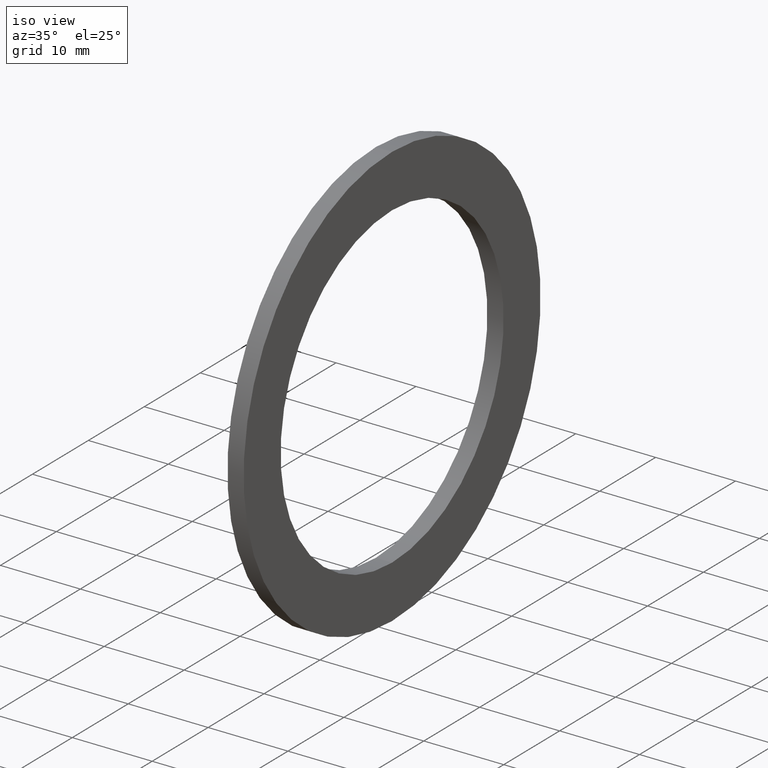
[diagram: clean part render]
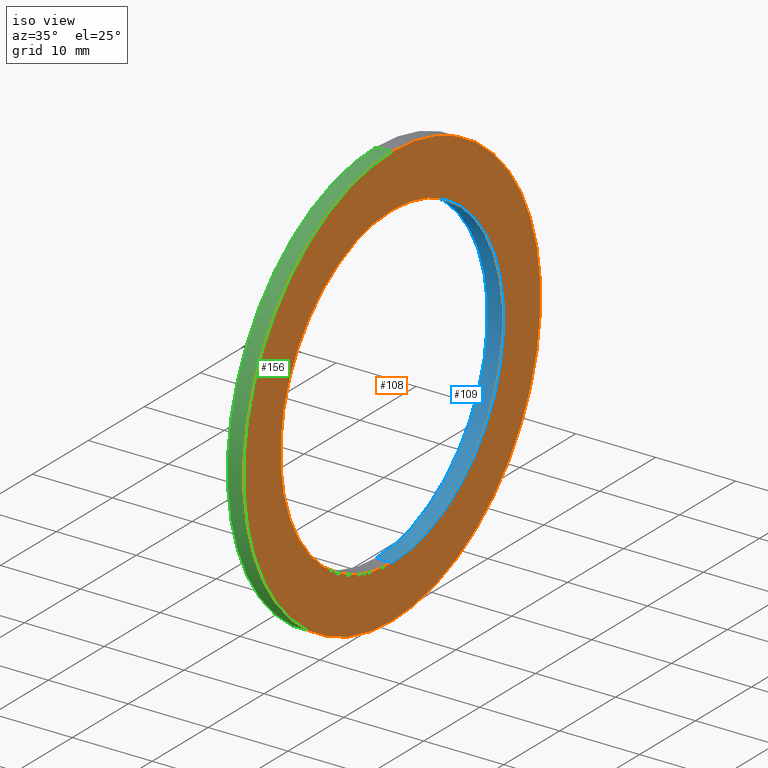
[diagram: same view with three faces highlighted in distinct colors, each labeled with its STEP entity id]
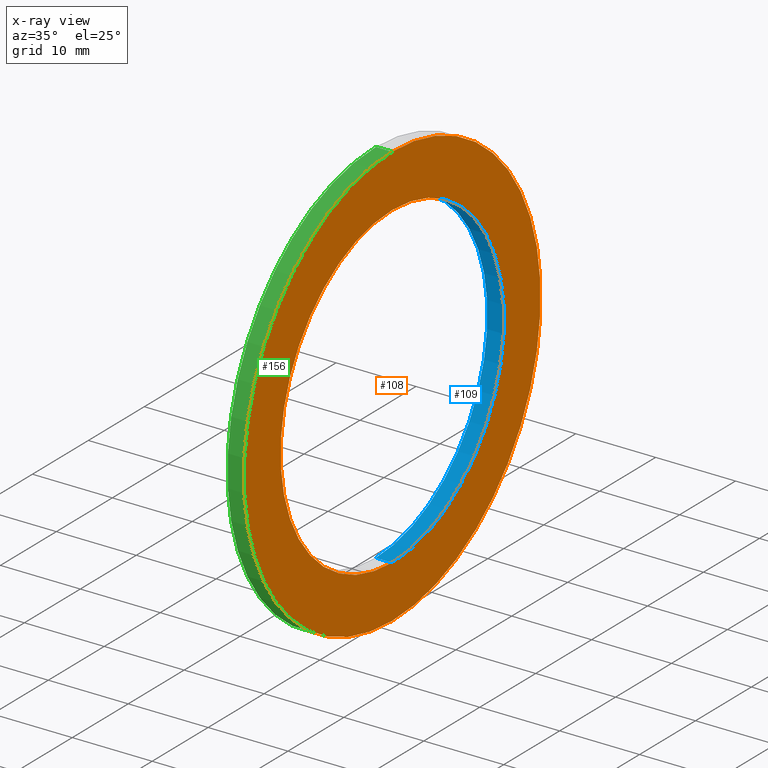
[diagram: x-ray of the same camera — body ghosted, the three highlighted faces saturated]
A machine part, iso view with three faces highlighted in distinct colors.
The next image is the same camera in x-ray (body ghosted, the three faces saturated) — at least one of them is partly hidden behind the body in this view.
Their STEP definitions:

[orange] entity #108 — the highlighted planar face has unit normal (1, 0, 0).
#1 = CARTESIAN_POINT ( 'NONE',  ( 0.07999999999999996000, 0.0000000000000000000, 0.0000000000000000000 ) ) ;
#2 = DIRECTION ( 'NONE',  ( -1.000000000000000000, 0.0000000000000000000, 0.0000000000000000000 ) ) ;
#3 = DIRECTION ( 'NONE',  ( 0.0000000000000000000, 0.0000000000000000000, 1.000000000000000000 ) ) ;
#5 = DIRECTION ( 'NONE',  ( 0.0000000000000000000, 0.0000000000000000000, -1.000000000000000000 ) ) ;
#6 = DIRECTION ( 'NONE',  ( 1.000000000000000000, 0.0000000000000000000, 0.0000000000000000000 ) ) ;
#7 = CARTESIAN_POINT ( 'NONE',  ( 0.08000000000000002900, -0.7850000000000001400, 0.0000000000000000000 ) ) ;
#8 = AXIS2_PLACEMENT_3D ( 'NONE', #7, #6, #5 ) ;
#10 = PLANE ( 'NONE',  #8 ) ;
#11 = FACE_OUTER_BOUND ( 'NONE', #83, .T. ) ;
#12 = DIRECTION ( 'NONE',  ( 0.0000000000000000000, 0.0000000000000000000, 1.000000000000000000 ) ) ;
#13 = DIRECTION ( 'NONE',  ( -1.000000000000000000, 0.0000000000000000000, 0.0000000000000000000 ) ) ;
#14 = CARTESIAN_POINT ( 'NONE',  ( 0.07999999999999996000, 0.0000000000000000000, 0.0000000000000000000 ) ) ;
#15 = AXIS2_PLACEMENT_3D ( 'NONE', #14, #13, #12 ) ;
#16 = CIRCLE ( 'NONE', #15, 0.7850000000000001400 ) ;
#17 = FACE_BOUND ( 'NONE', #84, .T. ) ;
#49 = CARTESIAN_POINT ( 'NONE',  ( 0.07999999999999996000, 0.0000000000000000000, 0.7850000000000001400 ) ) ;
#50 = DIRECTION ( 'NONE',  ( 0.0000000000000000000, 0.0000000000000000000, 1.000000000000000000 ) ) ;
#51 = DIRECTION ( 'NONE',  ( -1.000000000000000000, 0.0000000000000000000, 0.0000000000000000000 ) ) ;
#52 = CARTESIAN_POINT ( 'NONE',  ( 0.07999999999999996000, 0.0000000000000000000, 0.0000000000000000000 ) ) ;
#53 = AXIS2_PLACEMENT_3D ( 'NONE', #52, #51, #50 ) ;
#54 = CIRCLE ( 'NONE', #53, 0.7850000000000001400 ) ;
#59 = CARTESIAN_POINT ( 'NONE',  ( 0.07999999999999996000, 9.613477373306724800E-017, -0.7850000000000001400 ) ) ;
#82 = EDGE_CURVE ( 'NONE', #119, #117, #16, .T. ) ;
#83 = EDGE_LOOP ( 'NONE', ( #91, #88 ) ) ;
#84 = EDGE_LOOP ( 'NONE', ( #112, #90 ) ) ;
#88 = ORIENTED_EDGE ( 'NONE', *, *, #155, .F. ) ;
#90 = ORIENTED_EDGE ( 'NONE', *, *, #118, .T. ) ;
#91 = ORIENTED_EDGE ( 'NONE', *, *, #142, .F. ) ;
#93 = DIRECTION ( 'NONE',  ( 0.0000000000000000000, 0.0000000000000000000, 1.000000000000000000 ) ) ;
#94 = DIRECTION ( 'NONE',  ( -1.000000000000000000, 0.0000000000000000000, 0.0000000000000000000 ) ) ;
#95 = CARTESIAN_POINT ( 'NONE',  ( 0.07999999999999996000, 0.0000000000000000000, 0.0000000000000000000 ) ) ;
#96 = AXIS2_PLACEMENT_3D ( 'NONE', #95, #94, #93 ) ;
#97 = CIRCLE ( 'NONE', #96, 1.044999999999999900 ) ;
#108 = ADVANCED_FACE ( 'NONE', ( #17, #11 ), #10, .T. ) ;
#112 = ORIENTED_EDGE ( 'NONE', *, *, #82, .T. ) ;
#117 = VERTEX_POINT ( 'NONE', #59 ) ;
#118 = EDGE_CURVE ( 'NONE', #117, #119, #54, .T. ) ;
#119 = VERTEX_POINT ( 'NONE', #49 ) ;
#125 = AXIS2_PLACEMENT_3D ( 'NONE', #1, #2, #3 ) ;
#126 = CIRCLE ( 'NONE', #125, 1.044999999999999900 ) ;
#128 = CARTESIAN_POINT ( 'NONE',  ( 0.07999999999999996000, 1.279755905108984100E-016, -1.044999999999999900 ) ) ;
#129 = CARTESIAN_POINT ( 'NONE',  ( 0.07999999999999996000, 0.0000000000000000000, 1.044999999999999900 ) ) ;
#142 = EDGE_CURVE ( 'NONE', #147, #148, #97, .T. ) ;
#147 = VERTEX_POINT ( 'NONE', #129 ) ;
#148 = VERTEX_POINT ( 'NONE', #128 ) ;
#155 = EDGE_CURVE ( 'NONE', #148, #147, #126, .T. ) ;

[blue] entity #109 — the highlighted cylindrical surface (partial cylindrical patch) has radius 19.939 mm, axis along (-1, 0, 0).
#4 = CARTESIAN_POINT ( 'NONE',  ( -1.721125226614714300, 0.0000000000000000000, 0.0000000000000000000 ) ) ;
#9 = FACE_OUTER_BOUND ( 'NONE', #89, .T. ) ;
#12 = DIRECTION ( 'NONE',  ( 0.0000000000000000000, 0.0000000000000000000, 1.000000000000000000 ) ) ;
#13 = DIRECTION ( 'NONE',  ( -1.000000000000000000, 0.0000000000000000000, 0.0000000000000000000 ) ) ;
#14 = CARTESIAN_POINT ( 'NONE',  ( 0.07999999999999996000, 0.0000000000000000000, 0.0000000000000000000 ) ) ;
#15 = AXIS2_PLACEMENT_3D ( 'NONE', #14, #13, #12 ) ;
#16 = CIRCLE ( 'NONE', #15, 0.7850000000000001400 ) ;
#26 = EDGE_CURVE ( 'NONE', #119, #149, #41, .T. ) ;
#38 = DIRECTION ( 'NONE',  ( -1.000000000000000000, 0.0000000000000000000, 0.0000000000000000000 ) ) ;
#39 = VECTOR ( 'NONE', #38, 39.37007874015748100 ) ;
#40 = CARTESIAN_POINT ( 'NONE',  ( -1.721125226614714300, 0.0000000000000000000, 0.7850000000000001400 ) ) ;
#41 = LINE ( 'NONE', #40, #39 ) ;
#46 = VECTOR ( 'NONE', #72, 39.37007874015748100 ) ;
#47 = CARTESIAN_POINT ( 'NONE',  ( -1.721125226614714300, 9.613477373306724800E-017, -0.7850000000000001400 ) ) ;
#48 = LINE ( 'NONE', #47, #46 ) ;
#49 = CARTESIAN_POINT ( 'NONE',  ( 0.07999999999999996000, 0.0000000000000000000, 0.7850000000000001400 ) ) ;
#59 = CARTESIAN_POINT ( 'NONE',  ( 0.07999999999999996000, 9.613477373306724800E-017, -0.7850000000000001400 ) ) ;
#61 = DIRECTION ( 'NONE',  ( 0.0000000000000000000, 0.0000000000000000000, 1.000000000000000000 ) ) ;
#62 = DIRECTION ( 'NONE',  ( -1.000000000000000000, 0.0000000000000000000, 0.0000000000000000000 ) ) ;
#63 = AXIS2_PLACEMENT_3D ( 'NONE', #4, #62, #61 ) ;
#64 = CYLINDRICAL_SURFACE ( 'NONE', #63, 0.7850000000000001400 ) ;
#71 = CARTESIAN_POINT ( 'NONE',  ( 0.0000000000000000000, 9.613477373306724800E-017, -0.7850000000000001400 ) ) ;
#72 = DIRECTION ( 'NONE',  ( -1.000000000000000000, 0.0000000000000000000, 0.0000000000000000000 ) ) ;
#82 = EDGE_CURVE ( 'NONE', #119, #117, #16, .T. ) ;
#85 = ORIENTED_EDGE ( 'NONE', *, *, #82, .F. ) ;
#86 = ORIENTED_EDGE ( 'NONE', *, *, #26, .T. ) ;
#87 = ORIENTED_EDGE ( 'NONE', *, *, #138, .T. ) ;
#89 = EDGE_LOOP ( 'NONE', ( #110, #85, #86, #87 ) ) ;
#103 = DIRECTION ( 'NONE',  ( 0.0000000000000000000, 0.0000000000000000000, 1.000000000000000000 ) ) ;
#104 = DIRECTION ( 'NONE',  ( -1.000000000000000000, 0.0000000000000000000, 0.0000000000000000000 ) ) ;
#105 = CARTESIAN_POINT ( 'NONE',  ( 0.0000000000000000000, 0.0000000000000000000, 0.0000000000000000000 ) ) ;
#106 = AXIS2_PLACEMENT_3D ( 'NONE', #105, #104, #103 ) ;
#107 = CIRCLE ( 'NONE', #106, 0.7850000000000001400 ) ;
#109 = ADVANCED_FACE ( 'NONE', ( #9 ), #64, .F. ) ;
#110 = ORIENTED_EDGE ( 'NONE', *, *, #121, .F. ) ;
#117 = VERTEX_POINT ( 'NONE', #59 ) ;
#119 = VERTEX_POINT ( 'NONE', #49 ) ;
#121 = EDGE_CURVE ( 'NONE', #117, #122, #48, .T. ) ;
#122 = VERTEX_POINT ( 'NONE', #71 ) ;
#127 = CARTESIAN_POINT ( 'NONE',  ( 0.0000000000000000000, 0.0000000000000000000, 0.7850000000000001400 ) ) ;
#138 = EDGE_CURVE ( 'NONE', #149, #122, #107, .T. ) ;
#149 = VERTEX_POINT ( 'NONE', #127 ) ;

[green] entity #156 — the highlighted cylindrical surface (partial cylindrical patch) has radius 26.543 mm, axis along (-1, 0, 0).
#1 = CARTESIAN_POINT ( 'NONE',  ( 0.07999999999999996000, 0.0000000000000000000, 0.0000000000000000000 ) ) ;
#2 = DIRECTION ( 'NONE',  ( -1.000000000000000000, 0.0000000000000000000, 0.0000000000000000000 ) ) ;
#3 = DIRECTION ( 'NONE',  ( 0.0000000000000000000, 0.0000000000000000000, 1.000000000000000000 ) ) ;
#18 = CARTESIAN_POINT ( 'NONE',  ( 0.0000000000000000000, 0.0000000000000000000, 1.044999999999999900 ) ) ;
#29 = DIRECTION ( 'NONE',  ( -1.000000000000000000, 0.0000000000000000000, 0.0000000000000000000 ) ) ;
#30 = VECTOR ( 'NONE', #29, 39.37007874015748100 ) ;
#31 = CARTESIAN_POINT ( 'NONE',  ( -1.721125226614714300, 0.0000000000000000000, 1.044999999999999900 ) ) ;
#37 = LINE ( 'NONE', #31, #30 ) ;
#76 = EDGE_CURVE ( 'NONE', #147, #78, #37, .T. ) ;
#78 = VERTEX_POINT ( 'NONE', #18 ) ;
#92 = CARTESIAN_POINT ( 'NONE',  ( 0.0000000000000000000, 1.279755905108984100E-016, -1.044999999999999900 ) ) ;
#98 = DIRECTION ( 'NONE',  ( 0.0000000000000000000, 0.0000000000000000000, 1.000000000000000000 ) ) ;
#99 = DIRECTION ( 'NONE',  ( -1.000000000000000000, 0.0000000000000000000, 0.0000000000000000000 ) ) ;
#100 = CARTESIAN_POINT ( 'NONE',  ( 0.0000000000000000000, 0.0000000000000000000, 0.0000000000000000000 ) ) ;
#101 = AXIS2_PLACEMENT_3D ( 'NONE', #100, #99, #98 ) ;
#102 = CIRCLE ( 'NONE', #101, 1.044999999999999900 ) ;
#125 = AXIS2_PLACEMENT_3D ( 'NONE', #1, #2, #3 ) ;
#126 = CIRCLE ( 'NONE', #125, 1.044999999999999900 ) ;
#128 = CARTESIAN_POINT ( 'NONE',  ( 0.07999999999999996000, 1.279755905108984100E-016, -1.044999999999999900 ) ) ;
#129 = CARTESIAN_POINT ( 'NONE',  ( 0.07999999999999996000, 0.0000000000000000000, 1.044999999999999900 ) ) ;
#130 = DIRECTION ( 'NONE',  ( -1.000000000000000000, 0.0000000000000000000, 0.0000000000000000000 ) ) ;
#131 = VECTOR ( 'NONE', #130, 39.37007874015748100 ) ;
#132 = CARTESIAN_POINT ( 'NONE',  ( -1.721125226614714300, 1.279755905108984100E-016, -1.044999999999999900 ) ) ;
#133 = LINE ( 'NONE', #132, #131 ) ;
#135 = ORIENTED_EDGE ( 'NONE', *, *, #146, .F. ) ;
#139 = EDGE_CURVE ( 'NONE', #144, #78, #102, .T. ) ;
#144 = VERTEX_POINT ( 'NONE', #92 ) ;
#146 = EDGE_CURVE ( 'NONE', #148, #144, #133, .T. ) ;
#147 = VERTEX_POINT ( 'NONE', #129 ) ;
#148 = VERTEX_POINT ( 'NONE', #128 ) ;
#151 = ORIENTED_EDGE ( 'NONE', *, *, #139, .F. ) ;
#152 = ORIENTED_EDGE ( 'NONE', *, *, #76, .T. ) ;
#153 = EDGE_LOOP ( 'NONE', ( #135, #154, #152, #151 ) ) ;
#154 = ORIENTED_EDGE ( 'NONE', *, *, #155, .T. ) ;
#155 = EDGE_CURVE ( 'NONE', #148, #147, #126, .T. ) ;
#156 = ADVANCED_FACE ( 'NONE', ( #171 ), #163, .T. ) ;
#157 = AXIS2_PLACEMENT_3D ( 'NONE', #158, #170, #175 ) ;
#158 = CARTESIAN_POINT ( 'NONE',  ( -1.721125226614714300, 0.0000000000000000000, 0.0000000000000000000 ) ) ;
#163 = CYLINDRICAL_SURFACE ( 'NONE', #157, 1.044999999999999900 ) ;
#170 = DIRECTION ( 'NONE',  ( -1.000000000000000000, 0.0000000000000000000, 0.0000000000000000000 ) ) ;
#171 = FACE_OUTER_BOUND ( 'NONE', #153, .T. ) ;
#175 = DIRECTION ( 'NONE',  ( 0.0000000000000000000, 0.0000000000000000000, 1.000000000000000000 ) ) ;